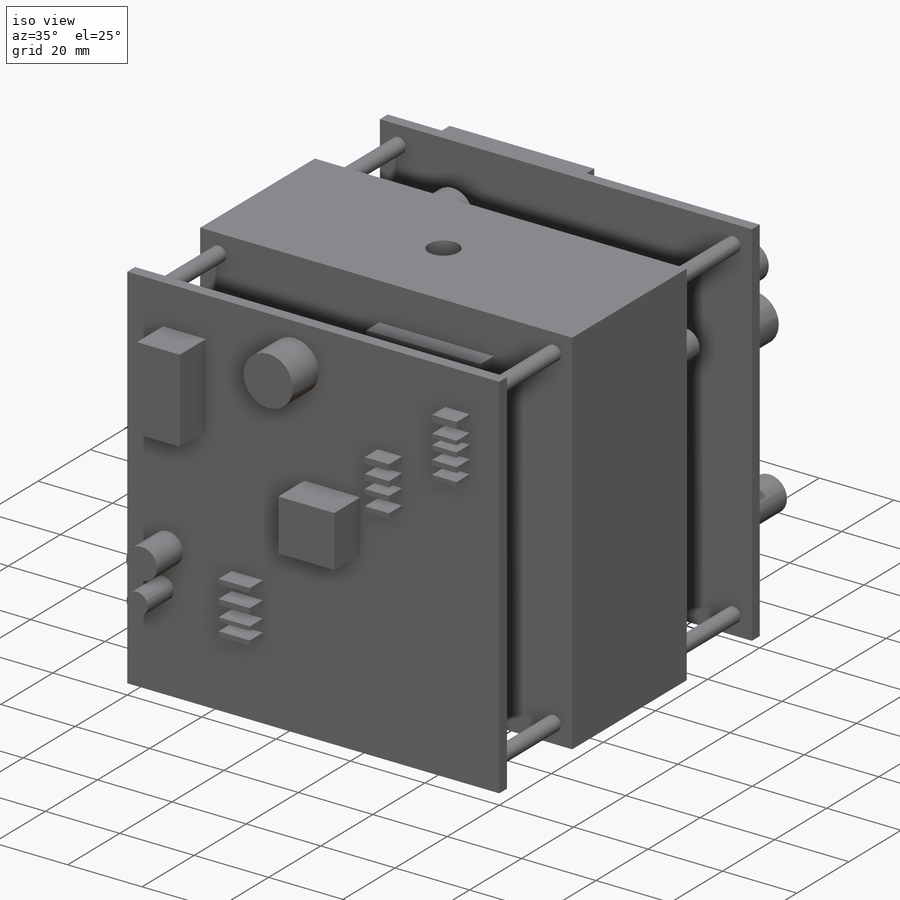
[diagram: iso view]
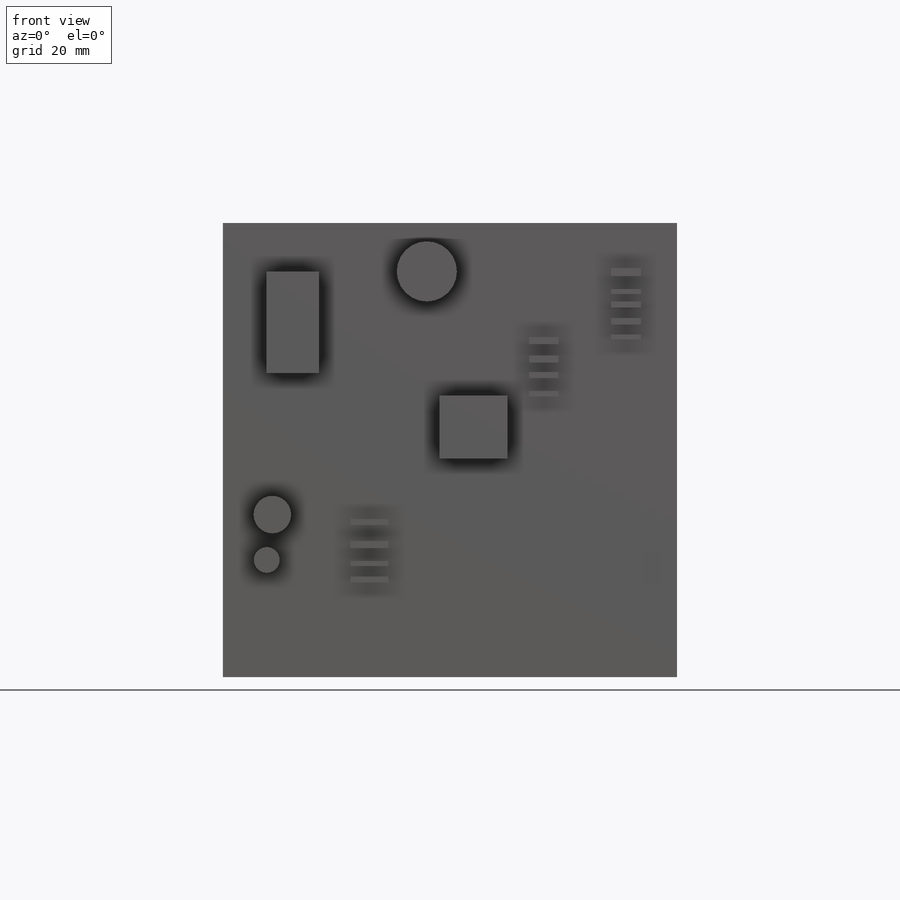
[diagram: front view]
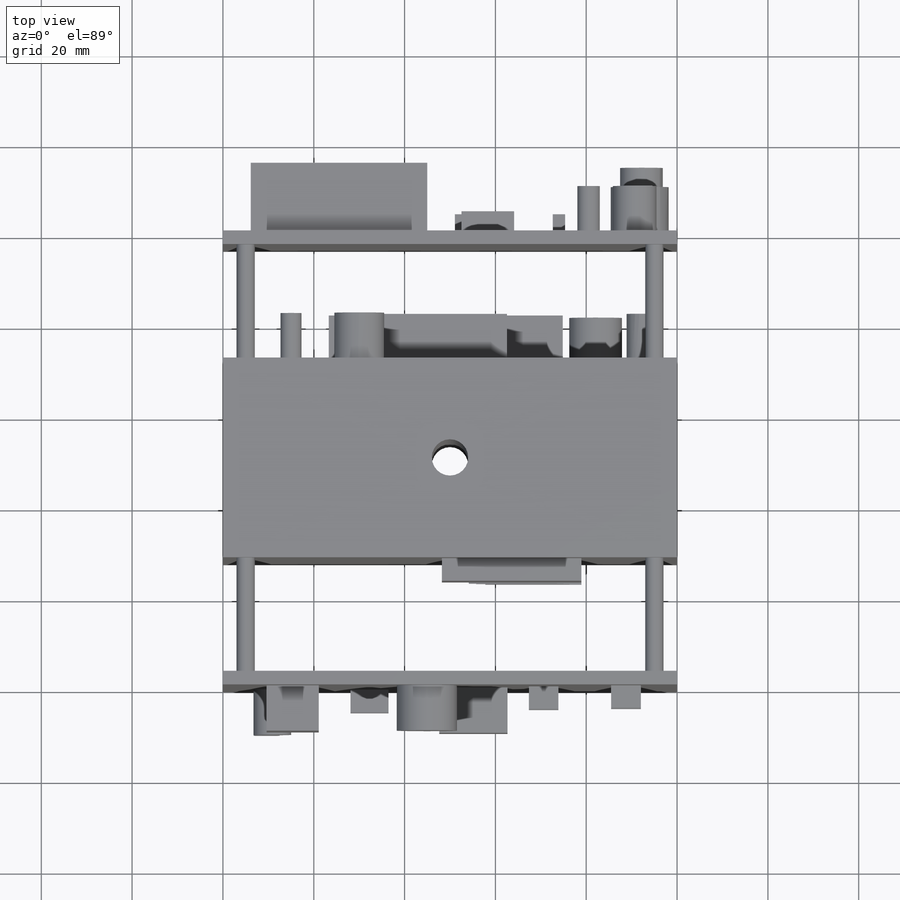
[diagram: top view]
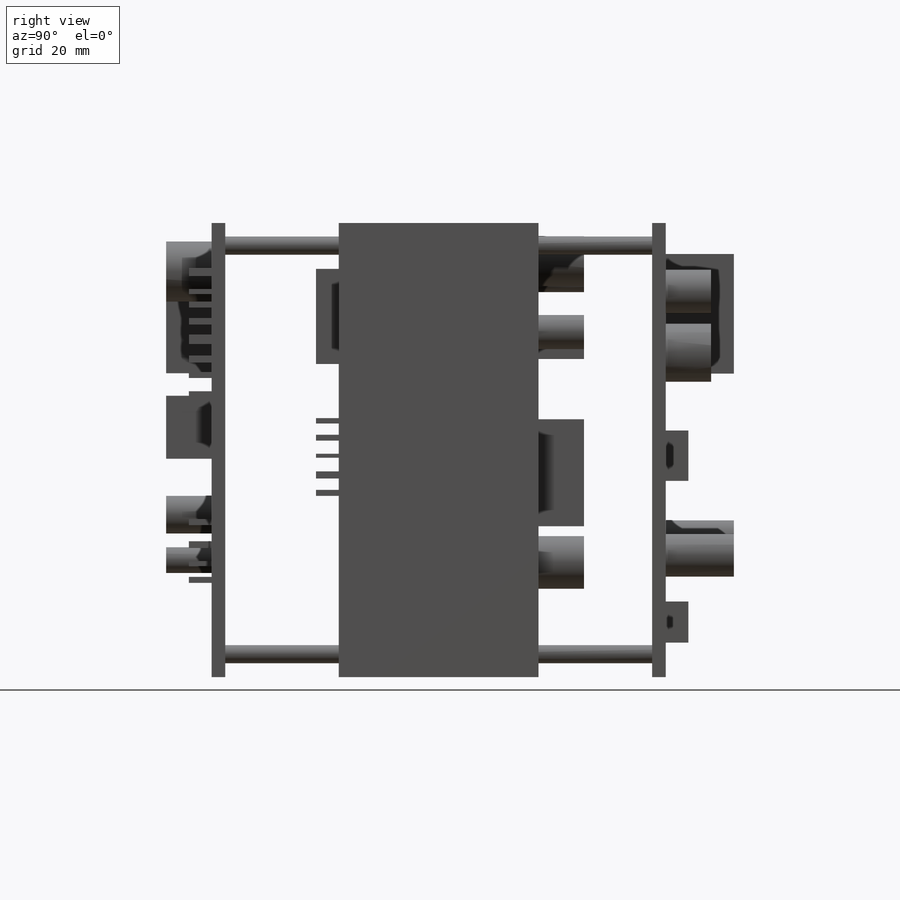
[diagram: right view]
SOLIDWORKS PART (.sldprt)
format: sldprt  version: not decoded by parser v0  size: 1,073,152 bytes
history: native  units: mm
features: sketch x13, extrude x11, plane x3, cut_extrude x2, material x1 (+8 scaffold rows collapsed)
feature tree (38):
  scaffold x8  (default folders/planes/origin — collapsed)
  material  "Material <sin especificar>"
  plane  "Alzado"
  plane  "Planta"
  plane  "Vista lateral"
  sketch  "Croquis1"  dims[D1=100.0mm D2=100.0mm]
  extrude  "Saliente-Extruir1"  Depth=100mm
  sketch  "Croquis2"  dims[D1=3.0mm D2=3.0mm D3=25.0mm D4=25.0mm]
  cut_extrude  "Cortar-Extruir1"  Depth=100mm
  sketch  "Croquis3"  dims[D1=~3.285152mm]
  cut_extrude  "Cortar-Extruir2"  Depth=100mm
  sketch  "Croquis4"  dims[D5=~2.974265mm D1=5.0mm D2=5.0mm D3=5.0mm D4=5.0mm]
  extrude  "Saliente-Extruir2"  Depth=100mm
  sketch  "Croquis5"
  extrude  "Saliente-Extruir3"  Depth=5mm
  sketch  "Croquis6"
  extrude  "Saliente-Extruir4"  Depth=15mm
  sketch  "Croquis7"
  extrude  "Saliente-Extruir5"  Depth=15mm
  sketch  "Croquis9"
  extrude  "Saliente-Extruir7"  Depth=10mm
  sketch  "Croquis10"
  extrude  "Saliente-Extruir8"  Depth=10mm
  sketch  "Croquis11"
  extrude  "Saliente-Extruir9"  Depth=10mm
  sketch  "Croquis12"
  extrude  "Saliente-Extruir12"  Depth=5mm
  sketch  "Croquis13"
  extrude  "Saliente-Extruir13"  Depth=5mm
  sketch  "Croquis14"
  extrude  "Saliente-Extruir14"  Depth=5mm
decode coverage: 17 of 26 modeling features carry decoded parameters
note: ~ marks probable driven/reference dimensions
note: suppression state not decoded; provenance and decode notes live in map.json
